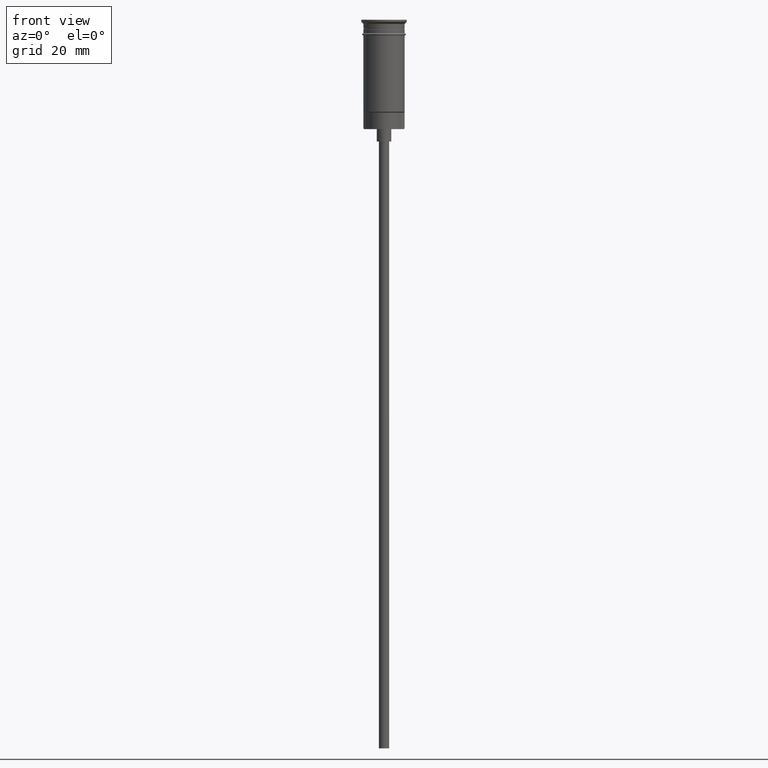
[diagram: clean part render]
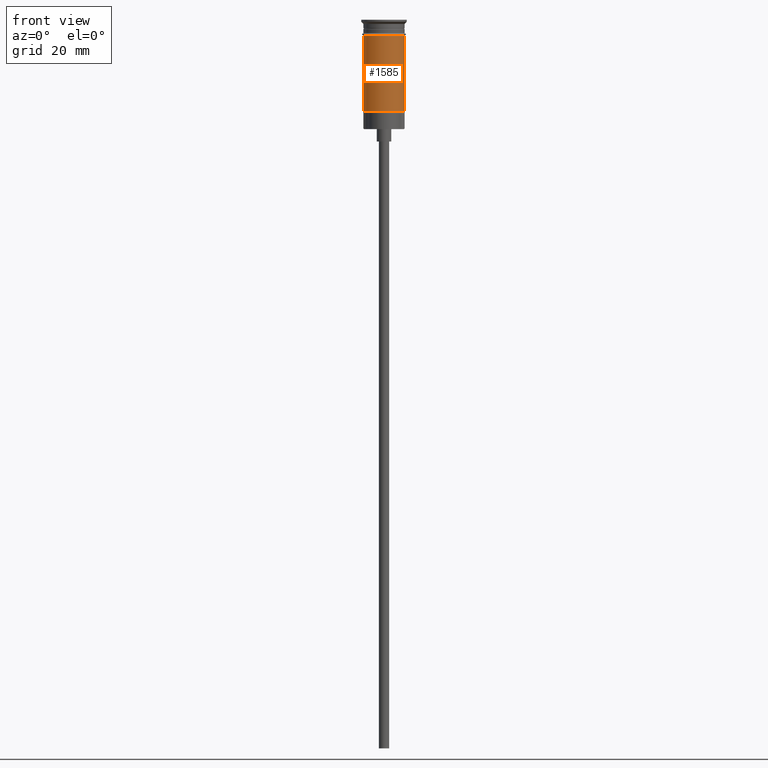
[diagram: same view with one face highlighted and labeled with its STEP entity id]
A machine part, front view. The second image highlights one B-rep face of the part: STEP entity #1585.
In plain terms, the highlighted cylindrical surface (edge-blend (fillet) strip) has radius 5 mm, axis along (-0, -0, 1).
Its self-contained STEP definition (entity closure, byte-faithful):
#16 = DIRECTION ( 'NONE',  ( -0.000000000000000000, -0.000000000000000000, 1.000000000000000000 ) ) ;
#37 = FACE_OUTER_BOUND ( 'NONE', #1586, .T. ) ;
#46 = EDGE_CURVE ( 'NONE', #1372, #746, #254, .T. ) ;
#94 = ORIENTED_EDGE ( 'NONE', *, *, #46, .T. ) ;
#111 = CARTESIAN_POINT ( 'NONE',  ( -4.999999999999996447, 6.123233995736762338E-16, 0.000000000000000000 ) ) ;
#129 = DIRECTION ( 'NONE',  ( -0.000000000000000000, -0.000000000000000000, 1.000000000000000000 ) ) ;
#193 = ORIENTED_EDGE ( 'NONE', *, *, #804, .F. ) ;
#206 = EDGE_CURVE ( 'NONE', #700, #1372, #591, .T. ) ;
#209 = CARTESIAN_POINT ( 'NONE',  ( -4.999999999999993783, 0.000000000000000000, -22.30000000000001137 ) ) ;
#254 = LINE ( 'NONE', #1002, #1313 ) ;
#365 = LINE ( 'NONE', #111, #1502 ) ;
#445 = DIRECTION ( 'NONE',  ( 1.000000000000000000, 0.000000000000000000, 0.000000000000000000 ) ) ;
#496 = DIRECTION ( 'NONE',  ( -0.000000000000000000, -0.000000000000000000, 1.000000000000000000 ) ) ;
#508 = AXIS2_PLACEMENT_3D ( 'NONE', #1236, #129, #642 ) ;
#533 = CIRCLE ( 'NONE', #1580, 4.999999999999999112 ) ;
#534 = DIRECTION ( 'NONE',  ( 1.000000000000000000, 0.000000000000000000, 0.000000000000000000 ) ) ;
#552 = CARTESIAN_POINT ( 'NONE',  ( 0.000000000000000000, 0.000000000000000000, 0.000000000000000000 ) ) ;
#591 = CIRCLE ( 'NONE', #508, 4.999999999999996447 ) ;
#596 = VERTEX_POINT ( 'NONE', #1158 ) ;
#642 = DIRECTION ( 'NONE',  ( -1.000000000000000000, 0.000000000000000000, 0.000000000000000000 ) ) ;
#700 = VERTEX_POINT ( 'NONE', #209 ) ;
#740 = AXIS2_PLACEMENT_3D ( 'NONE', #552, #774, #534 ) ;
#746 = VERTEX_POINT ( 'NONE', #1201 ) ;
#774 = DIRECTION ( 'NONE',  ( -0.000000000000000000, -0.000000000000000000, 1.000000000000000000 ) ) ;
#778 = ORIENTED_EDGE ( 'NONE', *, *, #988, .F. ) ;
#804 = EDGE_CURVE ( 'NONE', #700, #596, #365, .T. ) ;
#988 = EDGE_CURVE ( 'NONE', #596, #746, #533, .T. ) ;
#999 = CARTESIAN_POINT ( 'NONE',  ( 4.999999999999996447, 6.123233995736761352E-16, -22.30000000000001137 ) ) ;
#1002 = CARTESIAN_POINT ( 'NONE',  ( 4.999999999999996447, 0.000000000000000000, 0.000000000000000000 ) ) ;
#1010 = CYLINDRICAL_SURFACE ( 'NONE', #740, 4.999999999999996447 ) ;
#1038 = CARTESIAN_POINT ( 'NONE',  ( 0.000000000000000000, 0.000000000000000000, -3.799999999999998934 ) ) ;
#1158 = CARTESIAN_POINT ( 'NONE',  ( -4.999999999999999112, 6.123233995736765296E-16, -3.799999999999998934 ) ) ;
#1201 = CARTESIAN_POINT ( 'NONE',  ( 4.999999999999999112, 0.000000000000000000, -3.799999999999998934 ) ) ;
#1236 = CARTESIAN_POINT ( 'NONE',  ( 0.000000000000000000, 0.000000000000000000, -22.30000000000001137 ) ) ;
#1313 = VECTOR ( 'NONE', #16, 1000.000000000000000 ) ;
#1372 = VERTEX_POINT ( 'NONE', #999 ) ;
#1478 = ORIENTED_EDGE ( 'NONE', *, *, #206, .T. ) ;
#1502 = VECTOR ( 'NONE', #496, 1000.000000000000000 ) ;
#1529 = DIRECTION ( 'NONE',  ( -0.000000000000000000, -0.000000000000000000, 1.000000000000000000 ) ) ;
#1580 = AXIS2_PLACEMENT_3D ( 'NONE', #1038, #1529, #445 ) ;
#1585 = ADVANCED_FACE ( 'NONE', ( #37 ), #1010, .T. ) ;
#1586 = EDGE_LOOP ( 'NONE', ( #193, #1478, #94, #778 ) ) ;